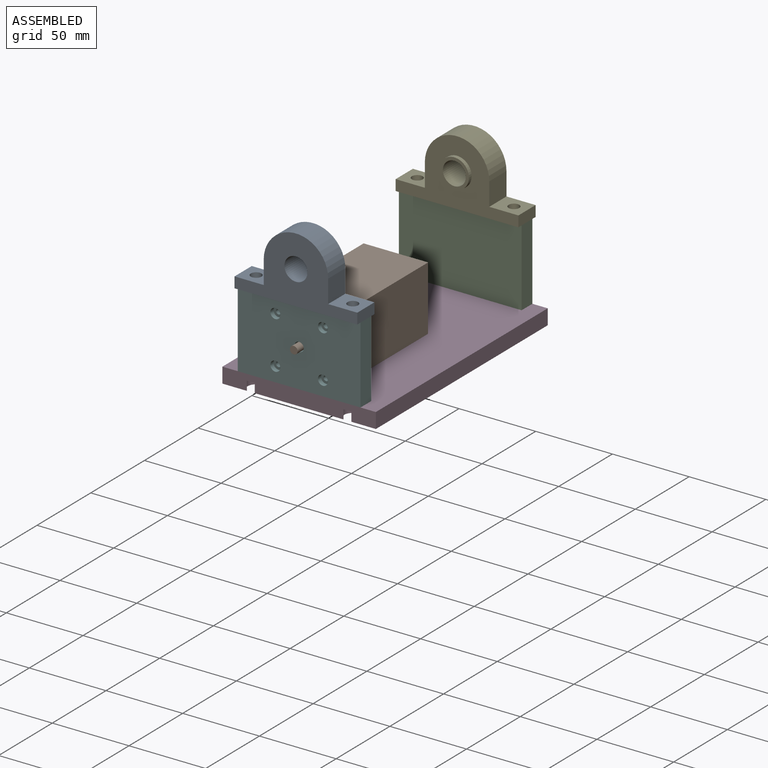
[diagram: assembled view]
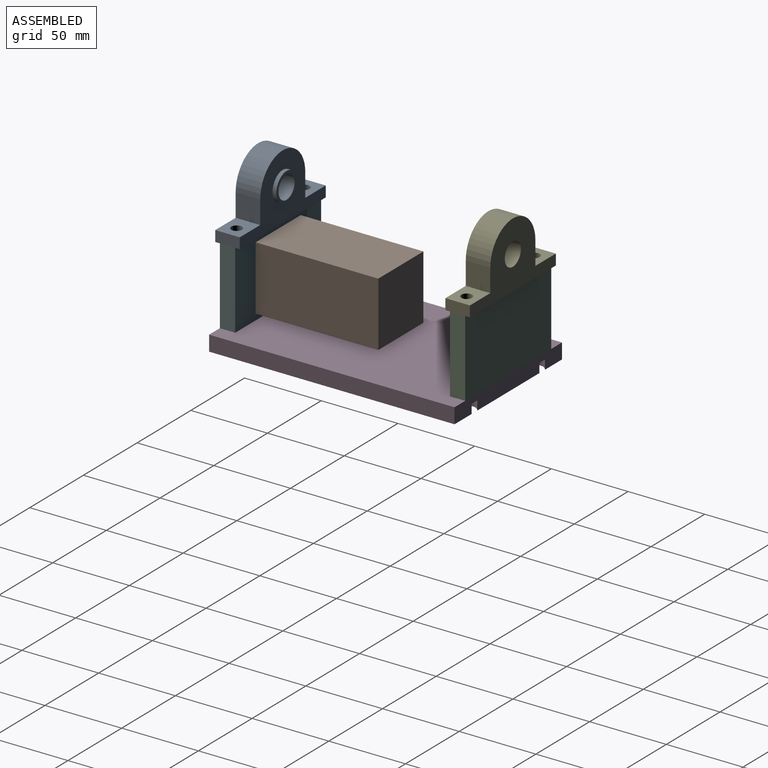
[diagram: assembled view, second angle]
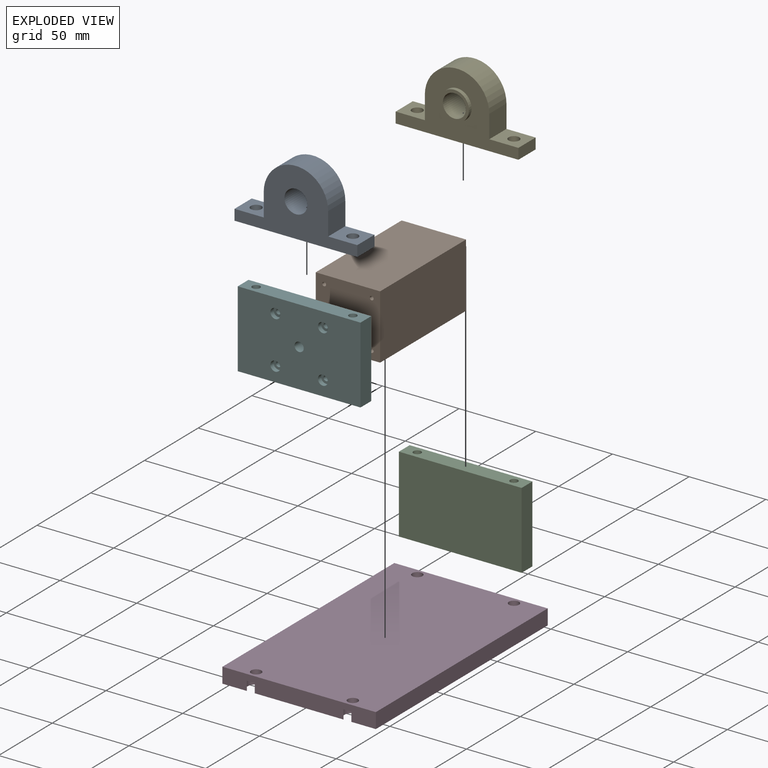
[diagram: exploded view]
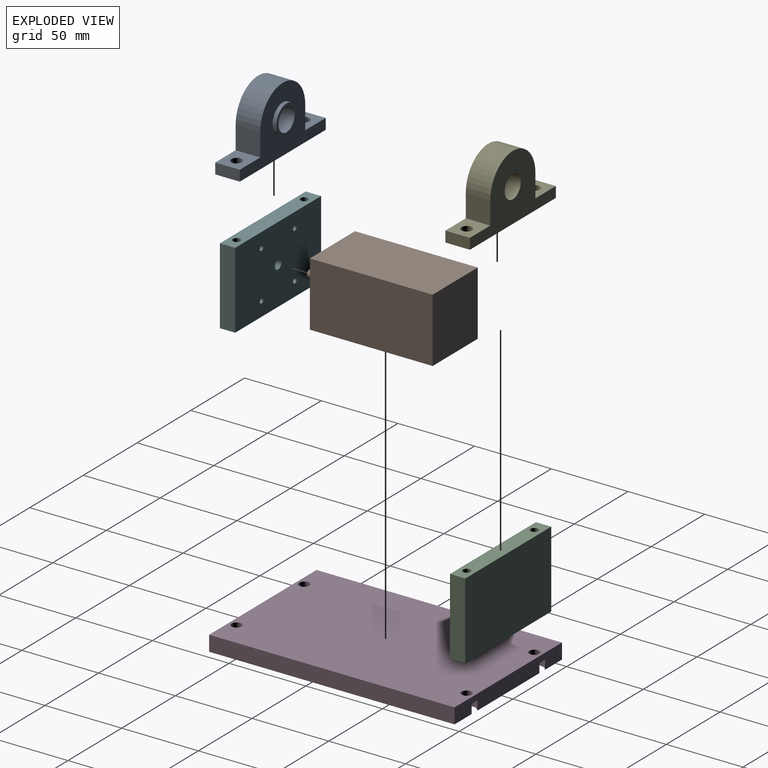
[diagram: exploded view, second angle]
ASSEMBLY  parts=6 mates=5
PART A: 15 faces, bbox 80x18.5x43 mm
  f0: plane 80x16mm, normal (0,0,-1), area 1203mm2, adj f4,f10,f11,f12,f13,f14
  f1: cylinder r=7.5mm len=18.5mm, axis (0,1,0), area 871.8mm2, adj f3,f4
  f2: cylinder r=9.5mm len=19mm, axis (0,1,0), area 149.2mm2, adj f3,f12
  f3: plane 19x19mm, normal (0,-1,0), area 106.8mm2, adj f1,f2
  f4: plane 80x43mm, normal (0,1,0), area 1706mm2, adj f0,f1,f5,f6,f7,f8,f9,f10
  f5: plane 19x16mm, normal (0,0,1), area 265.5mm2, adj f4,f6,f11,f12,f14
  f6: plane 16x15mm, normal (1,0,0), area 240mm2, adj f4,f5,f7,f12
  f7: cylinder r=21mm len=42mm, axis (0,1,0), area 1055.6mm2, adj f4,f6,f8,f12
  f8: plane 16x15mm, normal (-1,0,0), area 240mm2, adj f4,f7,f9,f12
  f9: plane 19x16mm, normal (0,0,1), area 265.5mm2, adj f4,f8,f10,f12,f13
  f10: plane 16x7mm, normal (-1,0,0), area 112mm2, adj f0,f4,f9,f12
  f11: plane 16x7mm, normal (1,0,0), area 112mm2, adj f0,f4,f5,f12
  f12: plane 80x43mm, normal (0,-1,0), area 1599.2mm2, adj f0,f2,f5,f6,f7,f8,f9,f10
  f13: cylinder r=3.5mm len=7mm, axis (0,0,1), area 153.9mm2, adj f0,f9
  f14: cylinder r=3.5mm len=7mm, axis (0,0,1), area 153.9mm2, adj f0,f5
PART B: 16 faces, bbox 42x95x42 mm
  f0: plane 80x42mm, normal (-1,0,0), area 3360mm2, adj f1,f3,f4,f5
  f1: plane 80x42mm, normal (0,0,1), area 3360mm2, adj f0,f2,f4,f5
  f2: plane 80x42mm, normal (1,0,0), area 3360mm2, adj f1,f3,f4,f5
  f3: plane 80x42mm, normal (0,0,-1), area 3360mm2, adj f0,f2,f4,f5
  f4: plane 42x42mm, normal (0,1,0), area 1764mm2, adj f0,f1,f2,f3
  f5: plane 42x42mm, normal (0,-1,0), area 1724.7mm2, adj f0,f1,f2,f3,f6,f8,f10,f12
  f6: cylinder r=1.25mm len=18.5mm, axis (0,-1,0), area 145.3mm2, adj f5,f7
  f7: cone r=0mm half-angle=59deg, axis (0,-1,0), area 5.7mm2, adj f6
  f8: cylinder r=1.25mm len=18.5mm, axis (0,-1,0), area 145.3mm2, adj f5,f9
  f9: cone r=0mm half-angle=59deg, axis (0,-1,0), area 5.7mm2, adj f8
  f10: cylinder r=1.25mm len=18.5mm, axis (0,-1,0), area 145.3mm2, adj f5,f11
  f11: cone r=0mm half-angle=59deg, axis (0,-1,0), area 5.7mm2, adj f10
  f12: cylinder r=1.25mm len=18.5mm, axis (0,-1,0), area 145.3mm2, adj f5,f13
  f13: cone r=0mm half-angle=59deg, axis (0,-1,0), area 5.7mm2, adj f12
  f14: cylinder r=2.5mm len=15mm, axis (0,1,0), area 235.6mm2, adj f5,f15
  f15: plane 5x5mm, normal (0,-1,0), area 19.6mm2, adj f14
PART C: 14 faces, bbox 80x10x50 mm
  f0: plane 50x10mm, normal (1,0,0), area 500mm2, adj f1,f3,f4,f5
  f1: plane 80x50mm, normal (0,-1,0), area 4000mm2, adj f0,f2,f4,f5
  f2: plane 50x10mm, normal (-1,0,0), area 500mm2, adj f1,f3,f4,f5
  f3: plane 80x50mm, normal (0,1,0), area 4000mm2, adj f0,f2,f4,f5
  f4: plane 80x10mm, normal (0,0,-1), area 760.7mm2, adj f0,f1,f2,f3,f10,f12
  f5: plane 80x10mm, normal (0,0,1), area 760.7mm2, adj f0,f1,f2,f3,f6,f8
  f6: cylinder r=2.5mm len=20mm, axis (0,0,1), area 314.2mm2, adj f5,f7
  f7: cone r=0mm half-angle=59deg, axis (0,0,1), area 22.9mm2, adj f6
  f8: cylinder r=2.5mm len=20mm, axis (0,0,1), area 314.2mm2, adj f5,f9
  f9: cone r=0mm half-angle=59deg, axis (0,0,1), area 22.9mm2, adj f8
  f10: cylinder r=2.5mm len=20mm, axis (0,0,-1), area 314.2mm2, adj f4,f11
  f11: cone r=0mm half-angle=59deg, axis (0,0,-1), area 22.9mm2, adj f10
  f12: cylinder r=2.5mm len=20mm, axis (0,0,-1), area 314.2mm2, adj f4,f13
  f13: cone r=0mm half-angle=59deg, axis (0,0,-1), area 22.9mm2, adj f12
PART D: 18 faces, bbox 100x160x10 mm
  f0: plane 100x10mm, normal (0,1,0), area 938.2mm2, adj f1,f2,f3,f4,f5,f6,f8,f9
  f1: plane 160x100mm, normal (0,0,-1), area 15611.1mm2, adj f0,f2,f3,f6,f9,f11,f13,f16
  f2: plane 160x10mm, normal (1,0,0), area 1600mm2, adj f0,f1,f4,f11
  f3: plane 160x10mm, normal (-1,0,0), area 1600mm2, adj f0,f1,f4,f11
  f4: plane 160x100mm, normal (0,0,1), area 15863.2mm2, adj f0,f2,f3,f7,f10,f11,f14,f17
  f5: plane 11.25x10.63mm, normal (0,0,-1), area 63mm2, adj f0,f6,f7
  f6: cylinder r=5.62mm len=11.25mm, axis (0,0,-1), area 179.9mm2, adj f0,f1,f5
  f7: cylinder r=3.3mm len=6.6mm, axis (0,0,-1), area 82.9mm2, adj f4,f5
  f8: plane 11.25x10.63mm, normal (0,0,-1), area 63mm2, adj f0,f9,f10
  f9: cylinder r=5.62mm len=11.25mm, axis (0,0,-1), area 179.9mm2, adj f0,f1,f8
  f10: cylinder r=3.3mm len=6.6mm, axis (0,0,-1), area 82.9mm2, adj f4,f8
  f11: plane 100x10mm, normal (0,-1,0), area 938.2mm2, adj f1,f2,f3,f4,f12,f13,f15,f16
  f12: plane 11.25x10.63mm, normal (0,0,-1), area 63mm2, adj f11,f13,f14
  f13: cylinder r=5.62mm len=11.25mm, axis (0,0,-1), area 179.9mm2, adj f1,f11,f12
  f14: cylinder r=3.3mm len=6.6mm, axis (0,0,-1), area 82.9mm2, adj f4,f12
  f15: plane 11.25x10.63mm, normal (0,0,-1), area 63mm2, adj f11,f16,f17
  f16: cylinder r=5.62mm len=11.25mm, axis (0,0,-1), area 179.9mm2, adj f1,f11,f15
  f17: cylinder r=3.3mm len=6.6mm, axis (0,0,-1), area 82.9mm2, adj f4,f15
PART E: same geometry as A
PART F: 27 faces, bbox 80x10x50 mm
  f0: plane 50x10mm, normal (1,0,0), area 500mm2, adj f1,f3,f4,f5
  f1: plane 80x50mm, normal (0,-1,0), area 3839mm2, adj f0,f2,f4,f5,f14,f17,f20,f23
  f2: plane 50x10mm, normal (-1,0,0), area 500mm2, adj f1,f3,f4,f5
  f3: plane 80x50mm, normal (0,1,0), area 3937.5mm2, adj f0,f2,f4,f5,f14,f15,f18,f21
  f4: plane 80x10mm, normal (0,0,-1), area 760.7mm2, adj f0,f1,f2,f3,f10,f12
  f5: plane 80x10mm, normal (0,0,1), area 760.7mm2, adj f0,f1,f2,f3,f6,f8
  f6: cylinder r=2.5mm len=20mm, axis (0,0,1), area 314.2mm2, adj f5,f7
  f7: cone r=0mm half-angle=59deg, axis (0,0,1), area 22.9mm2, adj f6
  f8: cylinder r=2.5mm len=20mm, axis (0,0,1), area 314.2mm2, adj f5,f9
  f9: cone r=0mm half-angle=59deg, axis (0,0,1), area 22.9mm2, adj f8
  f10: cylinder r=2.5mm len=20mm, axis (0,0,-1), area 314.2mm2, adj f4,f11
  f11: cone r=0mm half-angle=59deg, axis (0,0,-1), area 22.9mm2, adj f10
  f12: cylinder r=2.5mm len=20mm, axis (0,0,-1), area 314.2mm2, adj f4,f13
  f13: cone r=0mm half-angle=59deg, axis (0,0,-1), area 22.9mm2, adj f12
  f14: cylinder r=3mm len=10mm, axis (0,-1,0), area 188.5mm2, adj f1,f3
  f15: cylinder r=1.65mm len=7mm, axis (0,-1,0), area 72.6mm2, adj f3,f16
  f16: plane 6.5x6.5mm, normal (0,-1,0), area 24.6mm2, adj f15,f17
  f17: cylinder r=3.25mm len=6.5mm, axis (0,-1,0), area 61.3mm2, adj f1,f16
  f18: cylinder r=1.65mm len=7mm, axis (0,-1,0), area 72.6mm2, adj f3,f19
  f19: plane 6.5x6.5mm, normal (0,-1,0), area 24.6mm2, adj f18,f20
  f20: cylinder r=3.25mm len=6.5mm, axis (0,-1,0), area 61.3mm2, adj f1,f19
  f21: cylinder r=1.65mm len=7mm, axis (0,-1,0), area 72.6mm2, adj f3,f22
  f22: plane 6.5x6.5mm, normal (0,-1,0), area 24.6mm2, adj f21,f23
  f23: cylinder r=3.25mm len=6.5mm, axis (0,-1,0), area 61.3mm2, adj f1,f22
  f24: cylinder r=1.65mm len=7mm, axis (0,-1,0), area 72.6mm2, adj f3,f25
  f25: plane 6.5x6.5mm, normal (0,-1,0), area 24.6mm2, adj f24,f26
  f26: cylinder r=3.25mm len=6.5mm, axis (0,-1,0), area 61.3mm2, adj f1,f25
PLACE A rot(axis=(0,0,1),180deg) t=(0,-166,0)mm
PLACE B t=(0,-150,0)mm
PLACE C at identity
PLACE D at identity fixed
PLACE E at identity
PLACE F t=(0,-150,0)mm
MATE fastened F.f8 <-> D.f16  axis (0,0,-1) through (31.5,-158,-72)mm
MATE fastened C.f8 <-> D.f9  axis (0,0,-1) through (31.5,-8,-72)mm
MATE fastened F.f14 <-> B.f14  axis (0,1,0) through (0,-153,-47)mm
MATE fastened A.f13 <-> F.f8  axis (0,0,-1) through (31.5,-158,-22)mm
MATE fastened C.f8 <-> E.f14  axis (0,0,1) through (31.5,-8,-22)mm
